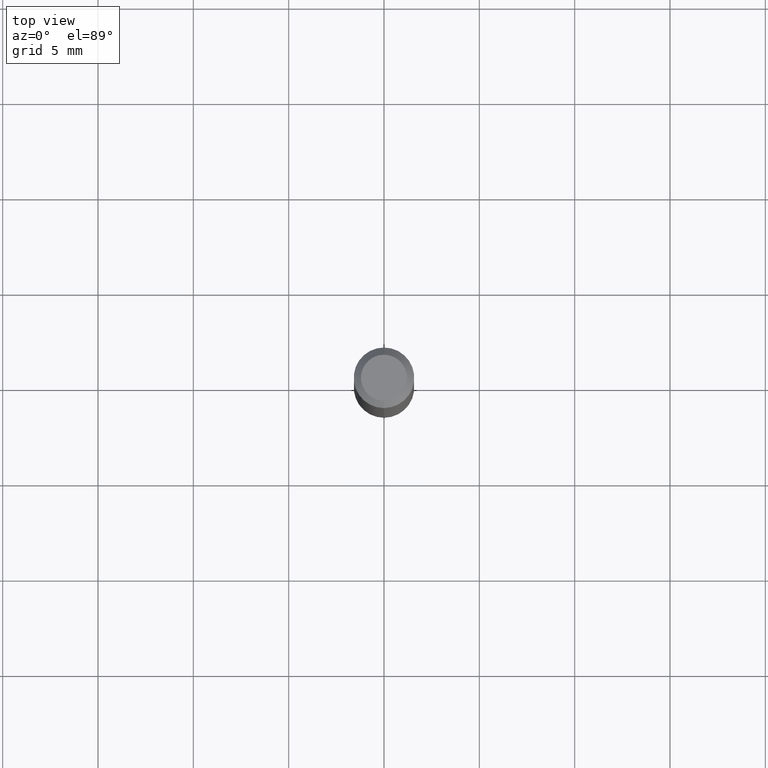
[diagram: clean part render]
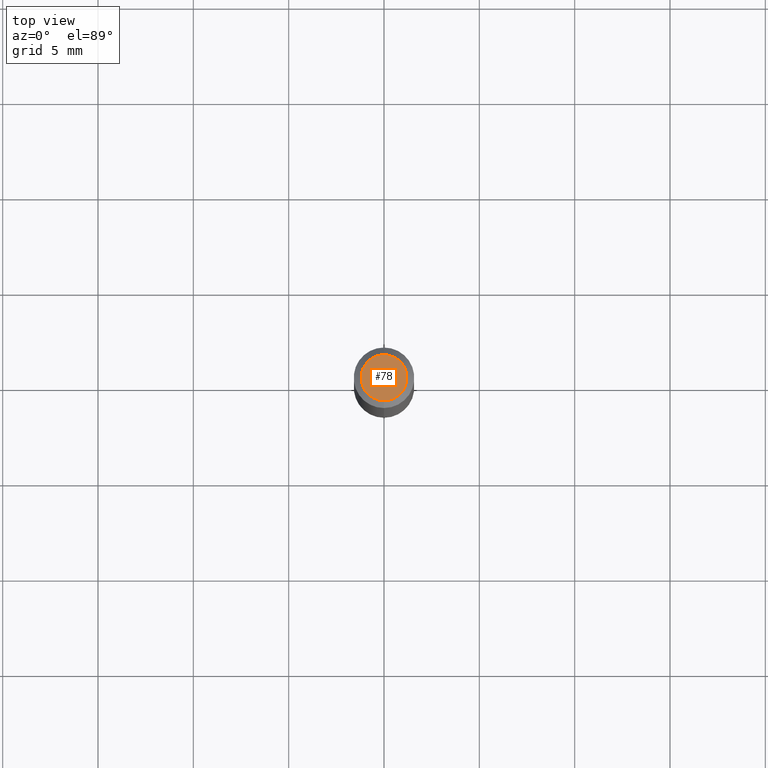
[diagram: same view with one face highlighted and labeled with its STEP entity id]
A machine part, top view. The second image highlights one B-rep face of the part: STEP entity #78.
In plain terms, the highlighted planar face has unit normal (0, -0, -1).
Its self-contained STEP definition (entity closure, byte-faithful):
#27 = CARTESIAN_POINT ( 'NONE',  ( 2.167065889285991824E-46, -3.093952023192066973E-32, -8.861493513333782588E-18 ) ) ;
#47 = CARTESIAN_POINT ( 'NONE',  ( 3.316907271900976096E-16, 0.04749999999999999362, -1.702749364302136000E-16 ) ) ;
#63 = DIRECTION ( 'NONE',  ( -2.445486063974693854E-29, 3.491456624706247087E-15, 1.000000000000000000 ) ) ;
#78 = ADVANCED_FACE ( 'NONE', ( #470 ), #262, .F. ) ;
#114 = CARTESIAN_POINT ( 'NONE',  ( -3.773273898774340269E-16, -0.04749999999999999362, 1.569826961602129331E-16 ) ) ;
#149 = DIRECTION ( 'NONE',  ( -6.982962677686266711E-15, -1.000000000000000000, 3.491456624706247087E-15 ) ) ;
#184 = ORIENTED_EDGE ( 'NONE', *, *, #191, .T. ) ;
#188 = AXIS2_PLACEMENT_3D ( 'NONE', #27, #225, #276 ) ;
#191 = EDGE_CURVE ( 'NONE', #259, #226, #481, .T. ) ;
#207 = DIRECTION ( 'NONE',  ( 2.445486063974693573E-29, -3.491456624706247087E-15, -1.000000000000000000 ) ) ;
#208 = ORIENTED_EDGE ( 'NONE', *, *, #242, .T. ) ;
#225 = DIRECTION ( 'NONE',  ( -2.445486063974693854E-29, 3.491456624706247087E-15, 1.000000000000000000 ) ) ;
#226 = VERTEX_POINT ( 'NONE', #114 ) ;
#242 = EDGE_CURVE ( 'NONE', #226, #259, #432, .T. ) ;
#243 = AXIS2_PLACEMENT_3D ( 'NONE', #47, #207, #364 ) ;
#259 = VERTEX_POINT ( 'NONE', #509 ) ;
#262 = PLANE ( 'NONE',  #243 ) ;
#276 = DIRECTION ( 'NONE',  ( -6.982962677686266711E-15, -1.000000000000000000, 3.491456624706247087E-15 ) ) ;
#282 = AXIS2_PLACEMENT_3D ( 'NONE', #385, #63, #149 ) ;
#364 = DIRECTION ( 'NONE',  ( 6.982962677686265922E-15, 1.000000000000000000, -3.491456624706247087E-15 ) ) ;
#385 = CARTESIAN_POINT ( 'NONE',  ( 2.167065889285991824E-46, -3.093952023192066973E-32, -8.861493513333782588E-18 ) ) ;
#432 = CIRCLE ( 'NONE', #282, 0.04749999999999999362 ) ;
#470 = FACE_OUTER_BOUND ( 'NONE', #507, .T. ) ;
#481 = CIRCLE ( 'NONE', #188, 0.04749999999999999362 ) ;
#507 = EDGE_LOOP ( 'NONE', ( #184, #208 ) ) ;
#509 = CARTESIAN_POINT ( 'NONE',  ( 3.840629472727447874E-16, 0.04749999999999999362, -1.747056831868805136E-16 ) ) ;